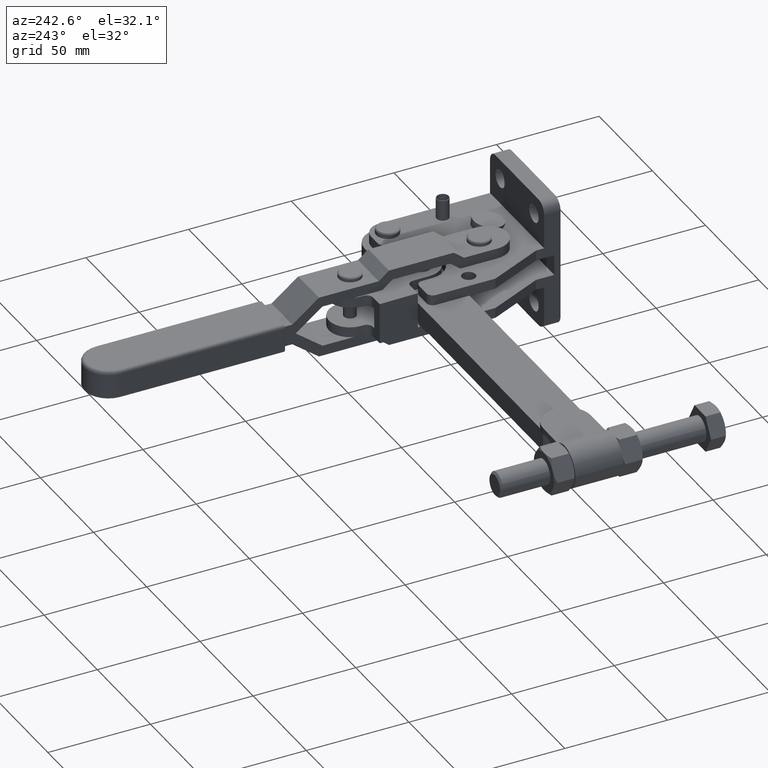
[diagram: clean part render]
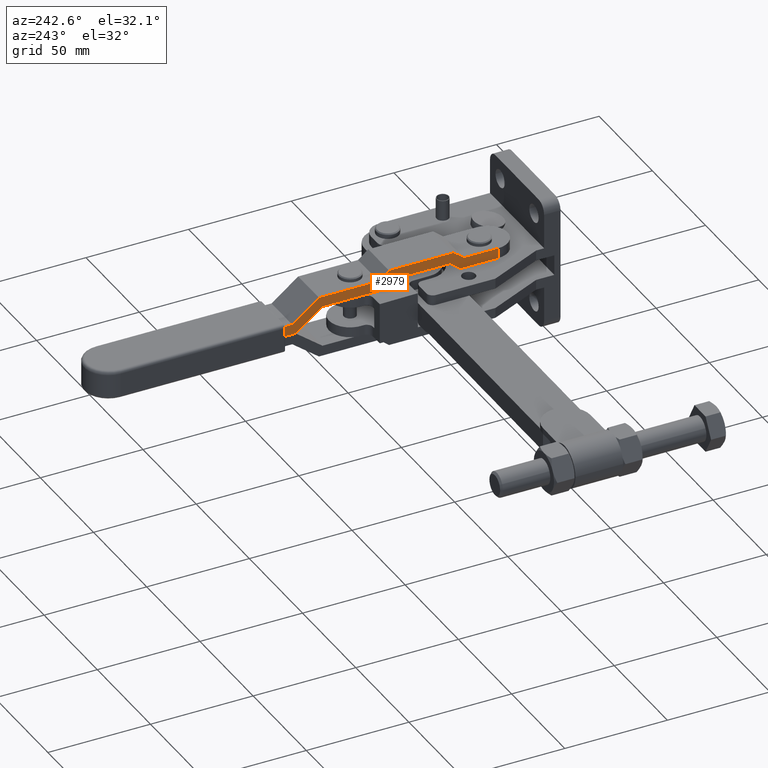
[diagram: same view with one face highlighted and labeled with its STEP entity id]
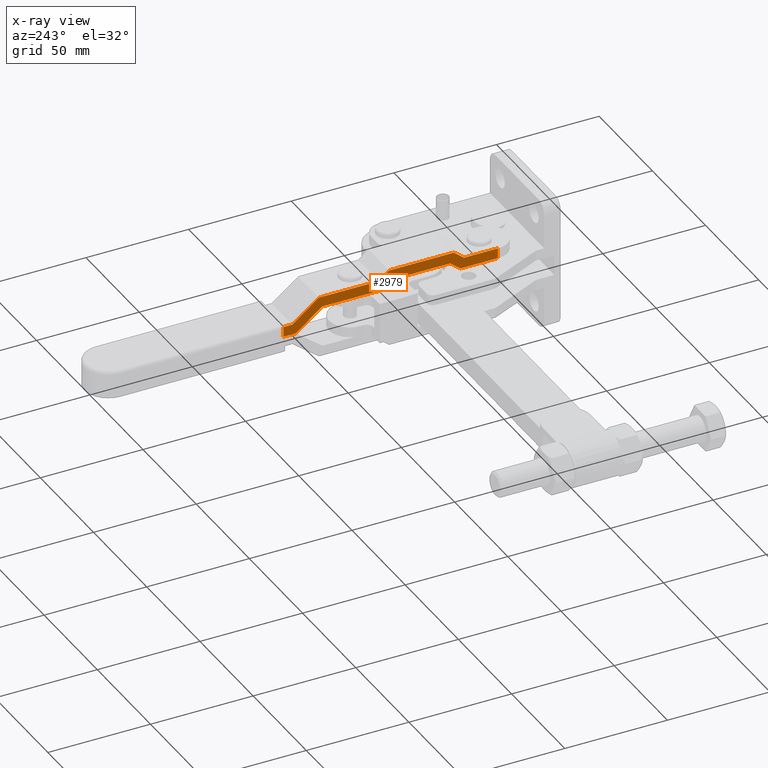
[diagram: x-ray of the same camera — body ghosted, the highlighted face saturated]
A machine part, auxiliary view. The second image highlights one B-rep face of the part: STEP entity #2979.
The next image is the same camera in x-ray: the body ghosted, the highlighted face saturated — about 0% of this face is hidden behind the body in this view.
In plain terms, the highlighted planar face has unit normal (1, 0, -0).
Its self-contained STEP definition (entity closure, byte-faithful):
#51 = CARTESIAN_POINT ( 'NONE',  ( -48.74999999999861400, 124.9193252665717900, -4.999950000000084500 ) ) ;
#63 = VECTOR ( 'NONE', #9531, 1000.000000000000200 ) ;
#85 = CARTESIAN_POINT ( 'NONE',  ( -48.74999999999859300, 131.0000000000003400, -3.224078123155070600E-015 ) ) ;
#202 = VECTOR ( 'NONE', #8133, 1000.000000000000000 ) ;
#233 = DIRECTION ( 'NONE',  ( 5.039938563123514200E-018, -0.0000000000000000000, 1.000000000000000000 ) ) ;
#300 = VECTOR ( 'NONE', #233, 1000.000000000000000 ) ;
#346 = CARTESIAN_POINT ( 'NONE',  ( -48.74999999999892000, 131.0000000000003400, -4.999950000000086300 ) ) ;
#351 = FACE_OUTER_BOUND ( 'NONE', #7028, .T. ) ;
#399 = VERTEX_POINT ( 'NONE', #9310 ) ;
#684 = VECTOR ( 'NONE', #8894, 1000.000000000000000 ) ;
#697 = CARTESIAN_POINT ( 'NONE',  ( -48.74999999999833000, 79.47000000000004100, 14.00000000000001100 ) ) ;
#726 = VERTEX_POINT ( 'NONE', #1542 ) ;
#856 = LINE ( 'NONE', #5708, #2893 ) ;
#886 = VERTEX_POINT ( 'NONE', #956 ) ;
#956 = CARTESIAN_POINT ( 'NONE',  ( -48.74999999999835200, 82.71609470320889600, 5.000000000000004400 ) ) ;
#993 = CARTESIAN_POINT ( 'NONE',  ( -48.74999999999817400, 49.69390529679112900, 9.000000000000007100 ) ) ;
#1062 = VERTEX_POINT ( 'NONE', #7085 ) ;
#1098 = LINE ( 'NONE', #2980, #5442 ) ;
#1109 = LINE ( 'NONE', #8204, #10039 ) ;
#1165 = VERTEX_POINT ( 'NONE', #8029 ) ;
#1176 = CARTESIAN_POINT ( 'NONE',  ( -48.74999999999835900, 84.46999999999998500, 10.00000000000000900 ) ) ;
#1262 = DIRECTION ( 'NONE',  ( -5.175286180912576000E-015, 1.000000000000000000, 3.922197432010286300E-017 ) ) ;
#1301 = DIRECTION ( 'NONE',  ( 5.175286180912576000E-015, -1.000000000000000000, -3.922197432010286300E-017 ) ) ;
#1442 = DIRECTION ( 'NONE',  ( -5.175286180912576000E-015, 1.000000000000000000, 3.922197432010286300E-017 ) ) ;
#1477 = DIRECTION ( 'NONE',  ( 1.000000000000000000, 5.175286180912576000E-015, -5.039938563123514200E-018 ) ) ;
#1495 = PLANE ( 'NONE',  #2555 ) ;
#1542 = CARTESIAN_POINT ( 'NONE',  ( -48.74999999999835900, 84.46999999999998500, 10.00000000000000900 ) ) ;
#1551 = LINE ( 'NONE', #5542, #8454 ) ;
#1615 = CARTESIAN_POINT ( 'NONE',  ( -48.74999999999806000, 26.45000000000000300, 5.000000000000009800 ) ) ;
#1660 = LINE ( 'NONE', #4605, #6003 ) ;
#1778 = VERTEX_POINT ( 'NONE', #5161 ) ;
#1895 = VECTOR ( 'NONE', #3991, 1000.000000000000000 ) ;
#2084 = VERTEX_POINT ( 'NONE', #346 ) ;
#2092 = CARTESIAN_POINT ( 'NONE',  ( -48.74999999999800300, 16.70000000000004900, 10.00000000000000500 ) ) ;
#2324 = EDGE_CURVE ( 'NONE', #7922, #8596, #3828, .T. ) ;
#2384 = CARTESIAN_POINT ( 'NONE',  ( -48.74999999999822400, 59.70304735160458900, 23.41043788128365600 ) ) ;
#2555 = AXIS2_PLACEMENT_3D ( 'NONE', #2384, #1477, #1442 ) ;
#2558 = EDGE_CURVE ( 'NONE', #2084, #10088, #1098, .T. ) ;
#2577 = LINE ( 'NONE', #9244, #300 ) ;
#2627 = EDGE_CURVE ( 'NONE', #2084, #7406, #2577, .T. ) ;
#2714 = DIRECTION ( 'NONE',  ( 5.175286180912576000E-015, -1.000000000000000000, -3.922197432010286300E-017 ) ) ;
#2743 = VECTOR ( 'NONE', #3267, 1000.000000000000000 ) ;
#2787 = EDGE_CURVE ( 'NONE', #1062, #886, #2994, .T. ) ;
#2893 = VECTOR ( 'NONE', #5745, 1000.000000000000000 ) ;
#2917 = EDGE_CURVE ( 'NONE', #10088, #1062, #11068, .T. ) ;
#2970 = ORIENTED_EDGE ( 'NONE', *, *, #4479, .T. ) ;
#2979 = ADVANCED_FACE ( 'NONE', ( #351 ), #1495, .F. ) ;
#2980 = CARTESIAN_POINT ( 'NONE',  ( -48.74999999999855800, 112.8993896713615200, -4.999950000000087200 ) ) ;
#2994 = LINE ( 'NONE', #9016, #684 ) ;
#3008 = EDGE_CURVE ( 'NONE', #1165, #5873, #6970, .T. ) ;
#3231 = EDGE_CURVE ( 'NONE', #886, #1165, #1660, .T. ) ;
#3233 = CARTESIAN_POINT ( 'NONE',  ( -48.74999999999833000, 79.47000000000004100, 14.00000000000001100 ) ) ;
#3267 = DIRECTION ( 'NONE',  ( -4.044367983276515100E-015, 0.7808688094430269500, -0.6246950475544285100 ) ) ;
#3426 = EDGE_CURVE ( 'NONE', #5873, #6178, #4678, .T. ) ;
#3493 = ORIENTED_EDGE ( 'NONE', *, *, #2787, .T. ) ;
#3508 = EDGE_CURVE ( 'NONE', #6178, #10921, #7639, .T. ) ;
#3572 = EDGE_CURVE ( 'NONE', #7922, #10921, #4815, .T. ) ;
#3594 = EDGE_CURVE ( 'NONE', #8596, #399, #9130, .T. ) ;
#3816 = EDGE_CURVE ( 'NONE', #399, #8152, #856, .T. ) ;
#3828 = LINE ( 'NONE', #2092, #6393 ) ;
#3890 = CARTESIAN_POINT ( 'NONE',  ( -48.74999999999850100, 111.9193902665716300, 5.000000000000006200 ) ) ;
#3965 = EDGE_CURVE ( 'NONE', #8152, #726, #9663, .T. ) ;
#3991 = DIRECTION ( 'NONE',  ( 4.105128882248801000E-015, -0.7926239891046013000, 0.6097107608496908900 ) ) ;
#4097 = EDGE_CURVE ( 'NONE', #726, #1778, #7494, .T. ) ;
#4479 = EDGE_CURVE ( 'NONE', #1778, #5224, #1109, .T. ) ;
#4549 = VECTOR ( 'NONE', #7989, 1000.000000000000200 ) ;
#4605 = CARTESIAN_POINT ( 'NONE',  ( -48.74999999999832300, 77.71609470320895200, 9.000000000000007100 ) ) ;
#4624 = ORIENTED_EDGE ( 'NONE', *, *, #3965, .T. ) ;
#4678 = LINE ( 'NONE', #9631, #63 ) ;
#4815 = LINE ( 'NONE', #8130, #202 ) ;
#4830 = ORIENTED_EDGE ( 'NONE', *, *, #3594, .T. ) ;
#5161 = CARTESIAN_POINT ( 'NONE',  ( -48.74999999999850100, 113.6199999999999600, 10.00000000000001100 ) ) ;
#5224 = VERTEX_POINT ( 'NONE', #8553 ) ;
#5361 = ORIENTED_EDGE ( 'NONE', *, *, #2324, .T. ) ;
#5442 = VECTOR ( 'NONE', #2714, 1000.000000000000000 ) ;
#5542 = CARTESIAN_POINT ( 'NONE',  ( -48.74999999999857200, 126.6199999999999500, 1.734723475976807100E-015 ) ) ;
#5708 = CARTESIAN_POINT ( 'NONE',  ( -48.74999999999816700, 47.94000000000004000, 14.00000000000001100 ) ) ;
#5745 = DIRECTION ( 'NONE',  ( -5.175286180912576000E-015, 1.000000000000000000, 3.922197432010286300E-017 ) ) ;
#5873 = VERTEX_POINT ( 'NONE', #9340 ) ;
#6003 = VECTOR ( 'NONE', #6367, 1000.000000000000000 ) ;
#6111 = DIRECTION ( 'NONE',  ( -5.175286180912576000E-015, 1.000000000000000000, -1.132146483819964200E-015 ) ) ;
#6178 = VERTEX_POINT ( 'NONE', #7356 ) ;
#6367 = DIRECTION ( 'NONE',  ( 4.044367983276515100E-015, -0.7808688094430269500, 0.6246950475544285100 ) ) ;
#6393 = VECTOR ( 'NONE', #11040, 1000.000000000000000 ) ;
#6467 = EDGE_CURVE ( 'NONE', #5224, #7406, #1551, .T. ) ;
#6472 = ORIENTED_EDGE ( 'NONE', *, *, #2627, .F. ) ;
#6719 = ORIENTED_EDGE ( 'NONE', *, *, #3008, .T. ) ;
#6751 = ORIENTED_EDGE ( 'NONE', *, *, #6467, .T. ) ;
#6970 = LINE ( 'NONE', #993, #9000 ) ;
#6977 = ORIENTED_EDGE ( 'NONE', *, *, #3572, .F. ) ;
#7028 = EDGE_LOOP ( 'NONE', ( #6472, #7427, #8616, #3493, #9580, #6719, #10875, #8059, #6977, #5361, #4830, #9759, #4624, #8373, #2970, #6751 ) ) ;
#7085 = CARTESIAN_POINT ( 'NONE',  ( -48.74999999999850100, 111.9193902665716300, 5.000000000000006200 ) ) ;
#7356 = CARTESIAN_POINT ( 'NONE',  ( -48.74999999999814500, 44.69390529679112200, 5.000000000000002700 ) ) ;
#7406 = VERTEX_POINT ( 'NONE', #85 ) ;
#7427 = ORIENTED_EDGE ( 'NONE', *, *, #2558, .T. ) ;
#7494 = LINE ( 'NONE', #1176, #9527 ) ;
#7639 = LINE ( 'NONE', #8562, #9671 ) ;
#7922 = VERTEX_POINT ( 'NONE', #8278 ) ;
#7989 = DIRECTION ( 'NONE',  ( -4.038071133955808000E-015, 0.7808688094430302800, 0.6246950475544242900 ) ) ;
#8029 = CARTESIAN_POINT ( 'NONE',  ( -48.74999999999832300, 77.71609470320895200, 9.000000000000007100 ) ) ;
#8059 = ORIENTED_EDGE ( 'NONE', *, *, #3508, .T. ) ;
#8080 = CARTESIAN_POINT ( 'NONE',  ( -48.74999999999814500, 42.94000000000003300, 10.00000000000000700 ) ) ;
#8120 = DIRECTION ( 'NONE',  ( -4.105128882248794700E-015, 0.7926239891046001900, -0.6097107608496923300 ) ) ;
#8130 = CARTESIAN_POINT ( 'NONE',  ( -48.74999999999806000, 26.45000000000000300, 14.00000000000001100 ) ) ;
#8133 = DIRECTION ( 'NONE',  ( -5.039938563123717600E-018, 3.922197432010283200E-017, -1.000000000000000000 ) ) ;
#8152 = VERTEX_POINT ( 'NONE', #697 ) ;
#8204 = CARTESIAN_POINT ( 'NONE',  ( -48.74999999999850100, 113.6199999999999600, 10.00000000000001100 ) ) ;
#8278 = CARTESIAN_POINT ( 'NONE',  ( -48.74999999999806000, 26.45000000000000300, 10.00000000000001100 ) ) ;
#8373 = ORIENTED_EDGE ( 'NONE', *, *, #4097, .T. ) ;
#8379 = CARTESIAN_POINT ( 'NONE',  ( -48.74999999999814500, 42.94000000000003300, 10.00000000000000700 ) ) ;
#8454 = VECTOR ( 'NONE', #6111, 1000.000000000000000 ) ;
#8553 = CARTESIAN_POINT ( 'NONE',  ( -48.74999999999857200, 126.6199999999999500, 1.734723475976807100E-015 ) ) ;
#8562 = CARTESIAN_POINT ( 'NONE',  ( -48.74999999999800300, 16.70000000000004900, 5.000000000000000900 ) ) ;
#8596 = VERTEX_POINT ( 'NONE', #8379 ) ;
#8605 = DIRECTION ( 'NONE',  ( 5.175286180912576000E-015, -1.000000000000000000, -3.922197432010286300E-017 ) ) ;
#8616 = ORIENTED_EDGE ( 'NONE', *, *, #2917, .T. ) ;
#8894 = DIRECTION ( 'NONE',  ( 5.175286180912576000E-015, -1.000000000000000000, -3.922197432010286300E-017 ) ) ;
#9000 = VECTOR ( 'NONE', #1301, 1000.000000000000000 ) ;
#9016 = CARTESIAN_POINT ( 'NONE',  ( -48.74999999999835200, 82.71609470320889600, 5.000000000000004400 ) ) ;
#9130 = LINE ( 'NONE', #8080, #4549 ) ;
#9244 = CARTESIAN_POINT ( 'NONE',  ( -48.74999999999859300, 131.0000000000003400, 23.41043788128365600 ) ) ;
#9310 = CARTESIAN_POINT ( 'NONE',  ( -48.74999999999816700, 47.94000000000004000, 14.00000000000001100 ) ) ;
#9340 = CARTESIAN_POINT ( 'NONE',  ( -48.74999999999817400, 49.69390529679112900, 9.000000000000007100 ) ) ;
#9527 = VECTOR ( 'NONE', #1262, 1000.000000000000000 ) ;
#9531 = DIRECTION ( 'NONE',  ( 4.038071133955808000E-015, -0.7808688094430302800, -0.6246950475544242900 ) ) ;
#9580 = ORIENTED_EDGE ( 'NONE', *, *, #3231, .T. ) ;
#9631 = CARTESIAN_POINT ( 'NONE',  ( -48.74999999999814500, 44.69390529679112200, 5.000000000000002700 ) ) ;
#9663 = LINE ( 'NONE', #3233, #2743 ) ;
#9671 = VECTOR ( 'NONE', #8605, 1000.000000000000000 ) ;
#9759 = ORIENTED_EDGE ( 'NONE', *, *, #3816, .T. ) ;
#10039 = VECTOR ( 'NONE', #8120, 1000.000000000000100 ) ;
#10088 = VERTEX_POINT ( 'NONE', #51 ) ;
#10875 = ORIENTED_EDGE ( 'NONE', *, *, #3426, .T. ) ;
#10921 = VERTEX_POINT ( 'NONE', #1615 ) ;
#11040 = DIRECTION ( 'NONE',  ( -5.175286180912576000E-015, 1.000000000000000000, 3.922197432010286300E-017 ) ) ;
#11068 = LINE ( 'NONE', #3890, #1895 ) ;